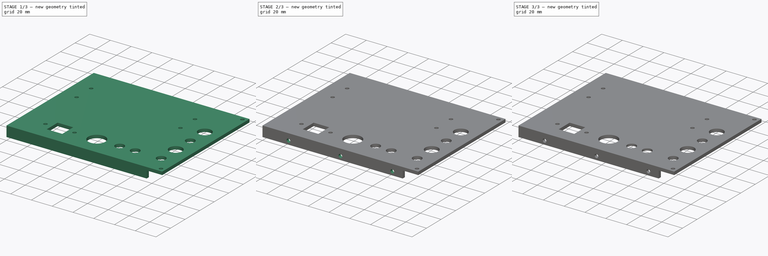
[diagram: build sequence overview — one tinted view per stage of 3, left to right]
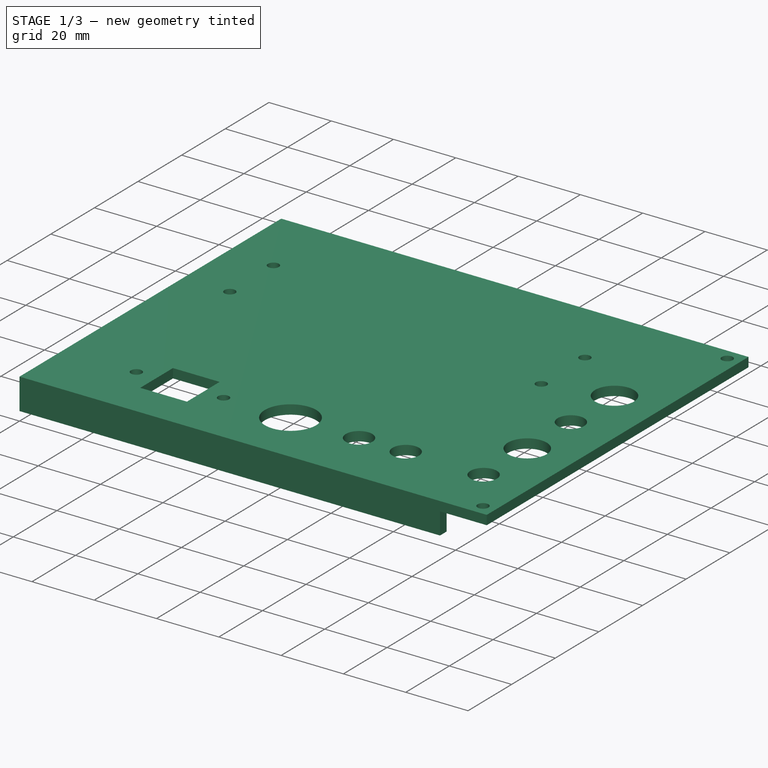
[diagram: stage 1 of 3 — iso view after this stage's code; geometry added in this stage tinted green]
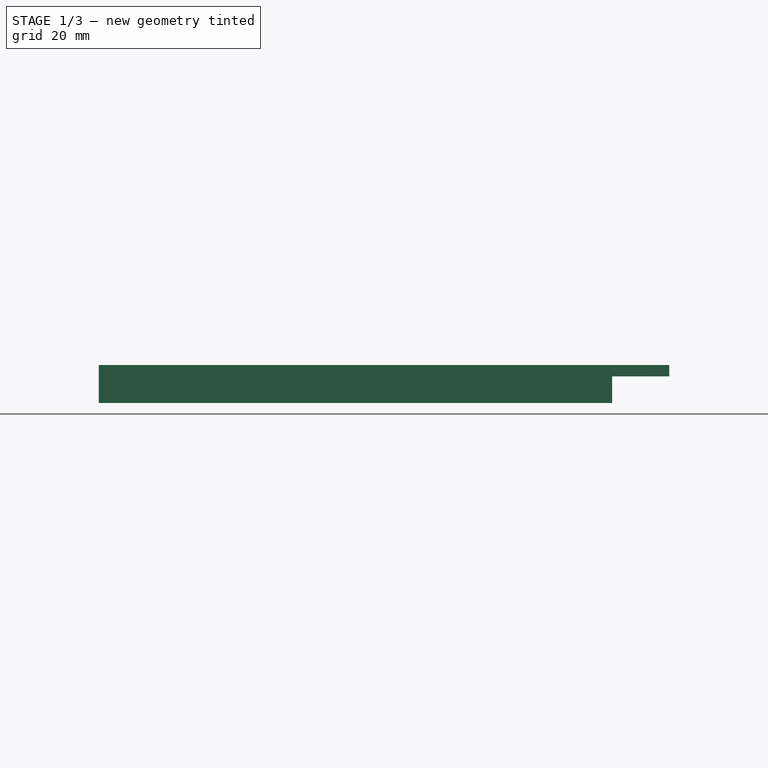
[diagram: stage 1 of 3 — front view after this stage's code; geometry added in this stage tinted green]
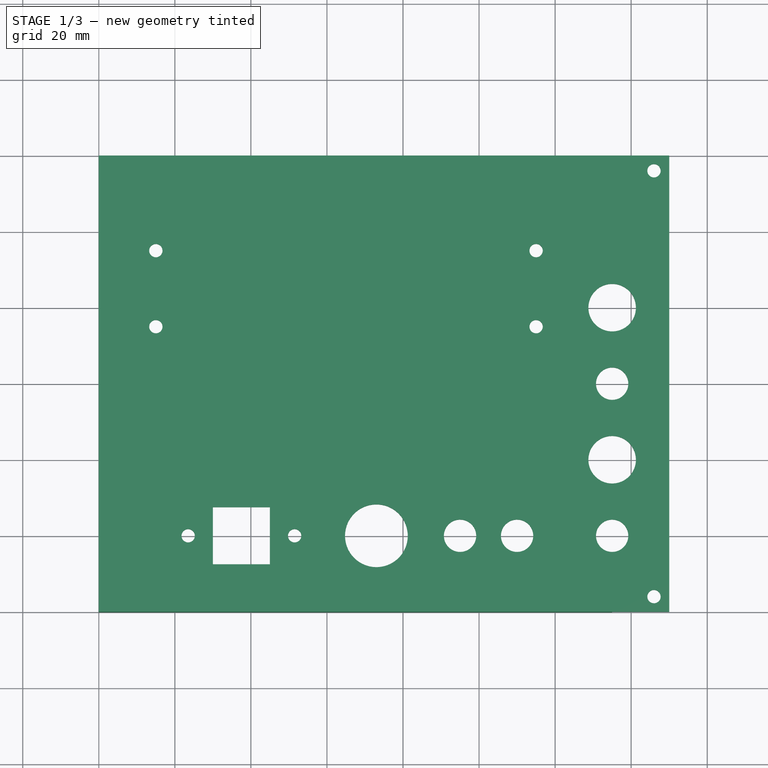
[diagram: stage 1 of 3 — top view after this stage's code; geometry added in this stage tinted green]
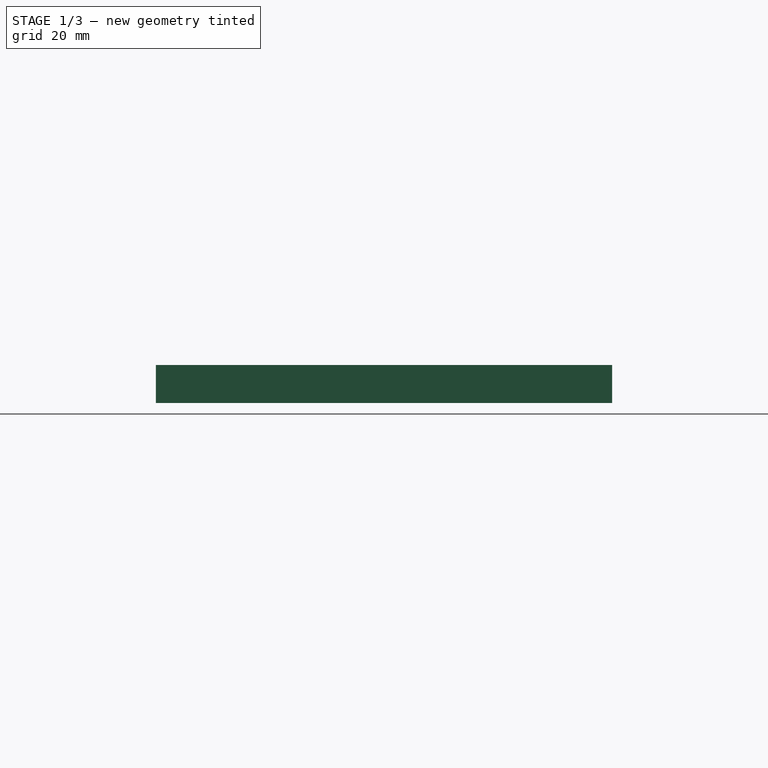
[diagram: stage 1 of 3 — right view after this stage's code; geometry added in this stage tinted green]
FCSTD DOCUMENT  (FreeCAD 0.21R30716 (Git))
Label: T41 Back Left Panel  V010
License: All rights reserved
LicenseURL: http://en.wikipedia.org/wiki/All_rights_reserved
objects: Sketcher::SketchObject×5, PartDesign::Pocket×3, PartDesign::Pad×2, PartDesign::Plane×1, PartDesign::Body×1
note: 17 computed .brp shape members not serialized (recipe doc carries the construction recipe); baked Part::Feature solids carry a one-line shape summary decoded from their .brp

FEATURE [Sketcher::SketchObject] CopySketch010
  FullyConstrained = true
  MapMode = 5
  Placement = pos=(0,0,0) rot=(0,1,0;3.14159rad)
  Support = -> [XY_Plane]
  sketch-geometry (23):
    g0: LineSegment StartX=-150 StartY=60 StartZ=0 EndX=0 EndY=60 EndZ=0
    g1: LineSegment StartX=0 StartY=60 StartZ=0 EndX=0 EndY=-60 EndZ=0
    g2: LineSegment StartX=0 StartY=-60 StartZ=0 EndX=-150 EndY=-60 EndZ=0
    g3: LineSegment StartX=-150 StartY=-60 StartZ=0 EndX=-150 EndY=60 EndZ=0
    g4: Circle CenterX=-146 CenterY=56 CenterZ=0 NormalX=0 NormalY=0 NormalZ=1 AngleXU=0 Radius=1.75
    g5: Circle CenterX=-146 CenterY=-56 CenterZ=0 NormalX=0 NormalY=0 NormalZ=1 AngleXU=0 Radius=1.75
    g6: Circle CenterX=-110 CenterY=-40 CenterZ=0 NormalX=0 NormalY=0 NormalZ=1 AngleXU=0 Radius=4.25
    g7: Circle CenterX=-95 CenterY=-40 CenterZ=0 NormalX=0 NormalY=0 NormalZ=1 AngleXU=0 Radius=4.25
    g8: Circle CenterX=-51.5 CenterY=-40 CenterZ=0 NormalX=0 NormalY=0 NormalZ=1 AngleXU=0 Radius=1.75
    g9: Circle CenterX=-23.5 CenterY=-40 CenterZ=0 NormalX=0 NormalY=0 NormalZ=1 AngleXU=0 Radius=1.75
    g10: LineSegment StartX=-45 StartY=-32.5 StartZ=0 EndX=-30 EndY=-32.5 EndZ=0
    g11: LineSegment StartX=-30 StartY=-32.5 StartZ=0 EndX=-30 EndY=-47.5 EndZ=0
    g12: LineSegment StartX=-30 StartY=-47.5 StartZ=0 EndX=-45 EndY=-47.5 EndZ=0
    g13: LineSegment StartX=-45 StartY=-47.5 StartZ=0 EndX=-45 EndY=-32.5 EndZ=0
    g14: Circle CenterX=-135 CenterY=-40 CenterZ=0 NormalX=0 NormalY=0 NormalZ=1 AngleXU=0 Radius=4.25
    g15: Circle CenterX=-135 CenterY=-20 CenterZ=0 NormalX=0 NormalY=0 NormalZ=1 AngleXU=0 Radius=6.25
    g16: Circle CenterX=-73 CenterY=-40 CenterZ=0 NormalX=0 NormalY=0 NormalZ=1 AngleXU=0 Radius=8.25
    g17: Circle CenterX=-135 CenterY=0 CenterZ=0 NormalX=0 NormalY=0 NormalZ=1 AngleXU=0 Radius=4.25
    g18: Circle CenterX=-135 CenterY=20 CenterZ=0 NormalX=0 NormalY=0 NormalZ=1 AngleXU=0 Radius=6.25
    g19: Circle CenterX=-115 CenterY=35 CenterZ=0 NormalX=0 NormalY=0 NormalZ=1 AngleXU=0 Radius=1.75
    g20: Circle CenterX=-115 CenterY=15 CenterZ=0 NormalX=0 NormalY=0 NormalZ=1 AngleXU=0 Radius=1.75
    g21: Circle CenterX=-15 CenterY=35 CenterZ=0 NormalX=0 NormalY=0 NormalZ=1 AngleXU=0 Radius=1.75
    g22: Circle CenterX=-15 CenterY=15 CenterZ=0 NormalX=0 NormalY=0 NormalZ=1 AngleXU=0 Radius=1.75
  constraints (69):
    c: Coincident(g0,g1)
    c: Coincident(g1,g2)
    c: Coincident(g2,g3)
    c: Coincident(g3,g0)
    c: Horizontal(g0)
    c: Horizontal(g2)
    c: Vertical(g1)
    c: Vertical(g3)
    c: PointOnObject(g1,g-2)
    c: DistanceY(g1,g1) = 120
    c: DistanceX(g2,g2) = 150
    c: Equal(g4,g5)
    c: Diameter(g4) = 3.5
    c: DistanceY(g5,g-1) = 56
    c: DistanceX(g5,g-1) = 146
    c: DistanceX(g4,g-1) = 146
    c: DistanceY(g-1,g4) = 56
    c: DistanceY(g-1,g0) = 60
    c: Horizontal(g6,g7)
    c: DistanceX(g6,g7) = 15
    c: Equal(g8,g9)
    c: Diameter(g8) = 3.5
    c: DistanceX(g8,g9) = 28
    c: Horizontal(g8,g9)
    c: Coincident(g10,g11)
    c: Coincident(g11,g12)
    c: Coincident(g12,g13)
    c: Coincident(g13,g10)
    c: Horizontal(g10)
    c: Horizontal(g12)
    c: Vertical(g11)
    c: Vertical(g13)
    c: DistanceX(g10,g10) = 15
    c: DistanceY(g11,g11) = 15
    c: DistanceX(g10,g9) = 6.5
    c: DistanceY(g9,g10) = 7.5
    c: DistanceY(g9,g-1) = 40
    c: Diameter(g14) = 8.5
    c: DistanceX(g14,g-1) = 135
    c: DistanceY(g14,g-1) = 40
    c: Vertical(g15,g14)
    c: DistanceY(g14,g15) = 20
    c: Diameter(g15) = 12.5
    c: DistanceX(g11,g1) = 30
    c: Equal(g6,g7)
    c: DistanceY(g2,g6) = 20
    c: DistanceX(g2,g6) = 40
    c: Diameter(g16) = 16.5
    c: DistanceY(g2,g16) = 20
    c: DistanceX(g2,g16) = 77
    c: Diameter(g6) = 8.5
    c: Diameter(g17) = 8.5
    c: Diameter(g18) = 12.5
    c: Vertical(g15,g17)
    c: Vertical(g17,g18)
    c: DistanceY(g15,g17) = 20
    c: DistanceY(g17,g18) = 20
    c: Equal(g19,g20)
    c: Equal(g19,g21)
    c: Equal(g19,g22)
    c: Diameter(g19) = 3.5
    c: Vertical(g19,g20)
    c: Vertical(g21,g22)
    c: Horizontal(g20,g22)
    c: DistanceX(g20,g22) = 100
    c: DistanceY(g22,g21) = 20
    c: DistanceY(g21,g0) = 25
    c: DistanceX(g21,g0) = 15
    c: Horizontal(g19,g21)
FEATURE [PartDesign::Pad] Pad
  Direction = (0,0,-1)
  Length = 3
  Length2 = 100
  Profile = -> CopySketch010
  ReferenceAxis = -> CopySketch010 [N_Axis]
  Type = 0
FEATURE [PartDesign::Plane] DatumPlane
  AttachmentOffset = pos=(0,0,-3) rot=(0,0,1;0rad)
  Length = 60
  MapMode = 5
  Placement = pos=(0,0,-3) rot=(0,0,1;0rad)
  ResizeMode = 0
  Support = -> [XY_Plane]
  Width = 60
FEATURE [Sketcher::SketchObject] Sketch
  FullyConstrained = true
  MapMode = 5
  Placement = pos=(0,0,-3) rot=(0,0,1;0rad)
  Support = -> [DatumPlane]
  sketch-geometry (8):
    g0: LineSegment StartX=135 StartY=60 StartZ=0 EndX=135 EndY=57 EndZ=0
    g1: LineSegment StartX=135 StartY=57 StartZ=0 EndX=3 EndY=57 EndZ=0
    g2: LineSegment StartX=3 StartY=57 StartZ=0 EndX=3 EndY=-57 EndZ=0
    g3: LineSegment StartX=3 StartY=-57 StartZ=0 EndX=135 EndY=-57 EndZ=0
    g4: LineSegment StartX=135 StartY=-57 StartZ=0 EndX=135 EndY=-60 EndZ=0
    g5: LineSegment StartX=135 StartY=-60 StartZ=0 EndX=0 EndY=-60 EndZ=0
    g6: LineSegment StartX=0 StartY=-60 StartZ=0 EndX=0 EndY=60 EndZ=0
    g7: LineSegment StartX=0 StartY=60 StartZ=0 EndX=135 EndY=60 EndZ=0
  constraints (24):
    c: Coincident(g0,g1)
    c: Horizontal(g1)
    c: Coincident(g1,g2)
    c: Vertical(g2)
    c: Coincident(g2,g3)
    c: Horizontal(g3)
    c: Coincident(g3,g4)
    c: Coincident(g4,g5)
    c: PointOnObject(g5,g-2)
    c: Horizontal(g5)
    c: Coincident(g5,g6)
    c: PointOnObject(g6,g-2)
    c: Coincident(g6,g7)
    c: Coincident(g7,g0)
    c: Horizontal(g7)
    c: Parallel(g0,g-2)
    c: Parallel(g4,g-2)
    c: DistanceY(g0,g0) = 3
    c: DistanceX(g7,g7) = 135
    c: DistanceX(g5,g5) = 135
    c: DistanceY(g6,g6) = 120
    c: DistanceY(g-1,g6) = 60
    c: DistanceX(g-1,g1) = 3
    c: DistanceY(g4,g3) = 3
FEATURE [PartDesign::Pad] Pad001  label="Flange"
  BaseFeature = -> Pad
  Direction = (0,0,1)
  Length = 7
  Length2 = 100
  Profile = -> Sketch
  ReferenceAxis = -> Sketch [N_Axis]
  Reversed = true
  Type = 0
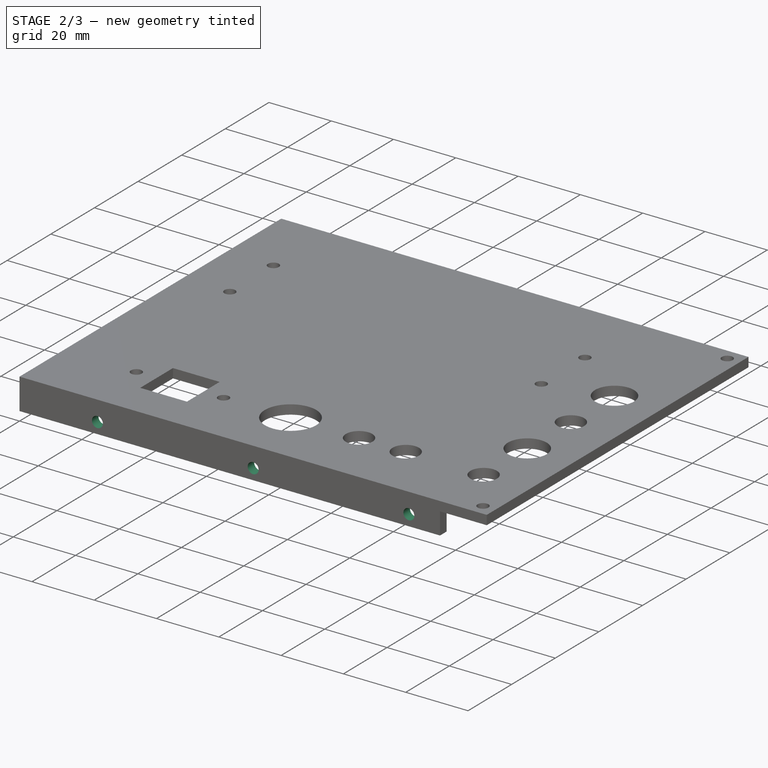
[diagram: stage 2 of 3 — iso view after this stage's code; geometry added in this stage tinted green]
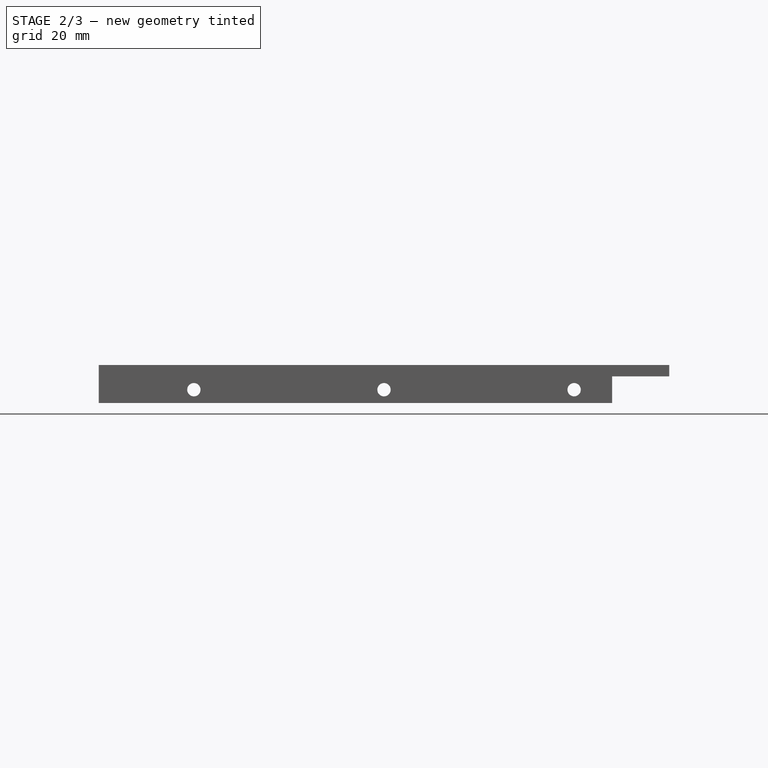
[diagram: stage 2 of 3 — front view after this stage's code; geometry added in this stage tinted green]
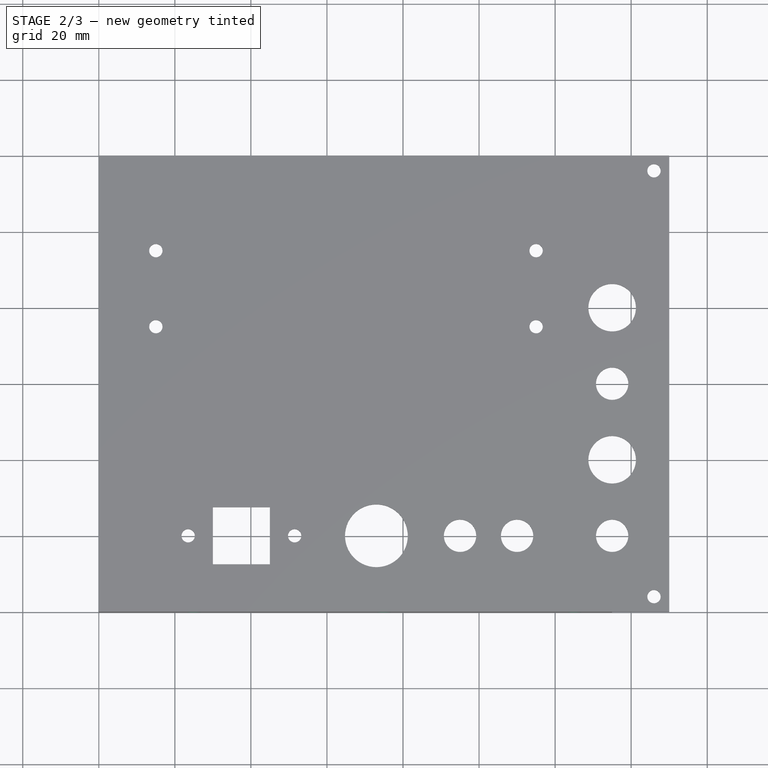
[diagram: stage 2 of 3 — top view after this stage's code; geometry added in this stage tinted green]
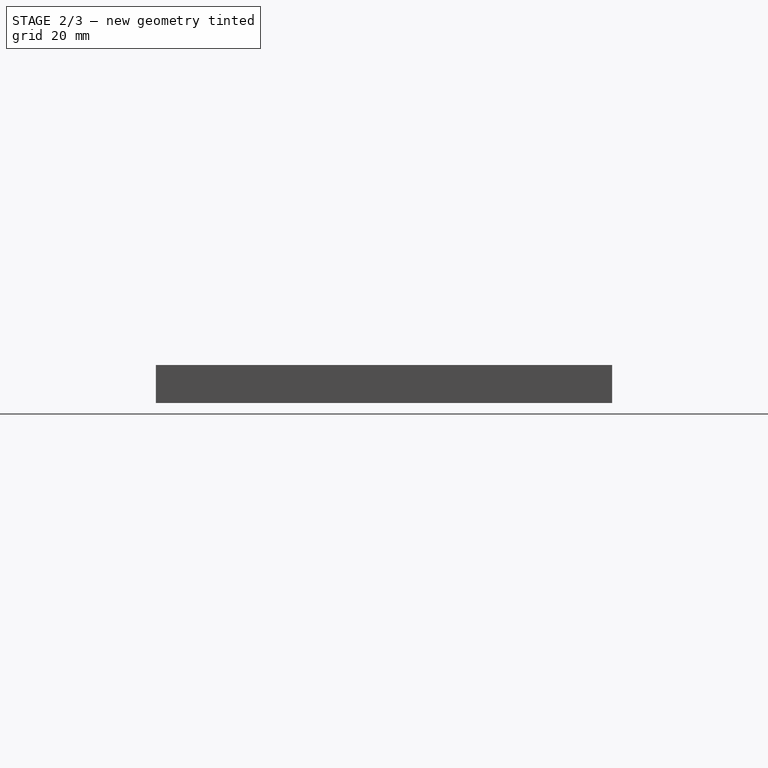
[diagram: stage 2 of 3 — right view after this stage's code; geometry added in this stage tinted green]
FEATURE [Sketcher::SketchObject] Sketch001
  FullyConstrained = true
  MapMode = 5
  Placement = pos=(0,60,0) rot=(0,0.707107,0.707107;3.14159rad)
  Support = -> [Pad001]
  sketch-geometry (3):
    g0: Circle CenterX=-25 CenterY=-6.5 CenterZ=0 NormalX=0 NormalY=0 NormalZ=1 AngleXU=0 Radius=1.75
    g1: Circle CenterX=-125 CenterY=-6.5 CenterZ=0 NormalX=0 NormalY=0 NormalZ=1 AngleXU=0 Radius=1.75
    g2: Circle CenterX=-75 CenterY=-6.5 CenterZ=0 NormalX=0 NormalY=0 NormalZ=1 AngleXU=0 Radius=1.75
  constraints (9):
    c: Equal(g1,g0)
    c: Horizontal(g1,g0)
    c: DistanceY(g0,g-1) = 6.5
    c: DistanceX(g0,g-1) = 25
    c: DistanceX(g1,g-1) = 125
    c: DistanceX(g2,g-1) = 75
    c: DistanceY(g2,g-1) = 6.5
    c: Equal(g0,g2)
    c: Diameter(g1) = 3.5
FEATURE [PartDesign::Pocket] Pocket  label="Top bottom holes"
  BaseFeature = -> Pad001
  Direction = (0,-1,2e-16)
  Length = 225.01
  Length2 = 100
  Profile = -> Sketch001
  Type = 0
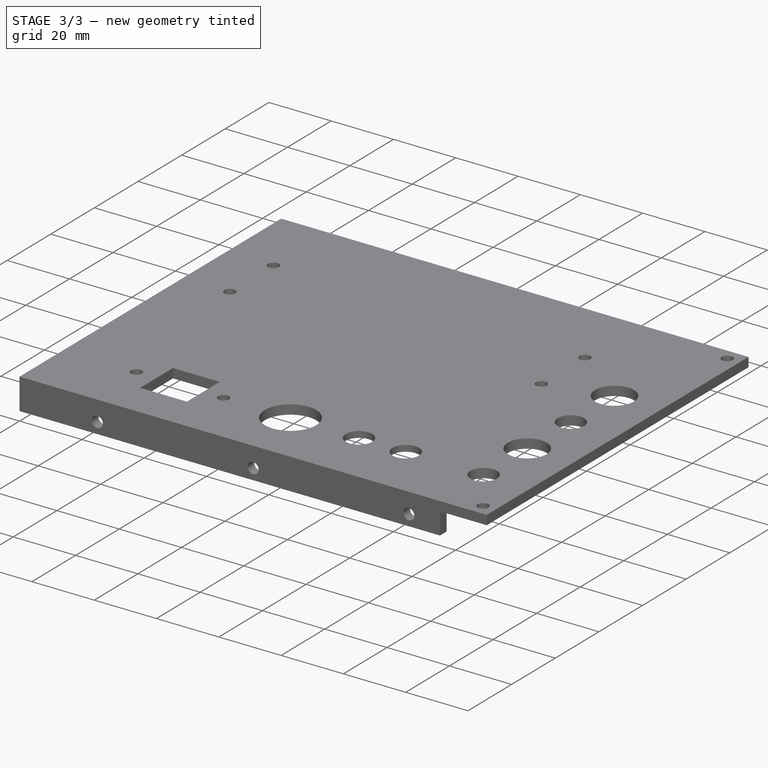
[diagram: stage 3 of 3 — iso view after this stage's code; geometry added in this stage tinted green]
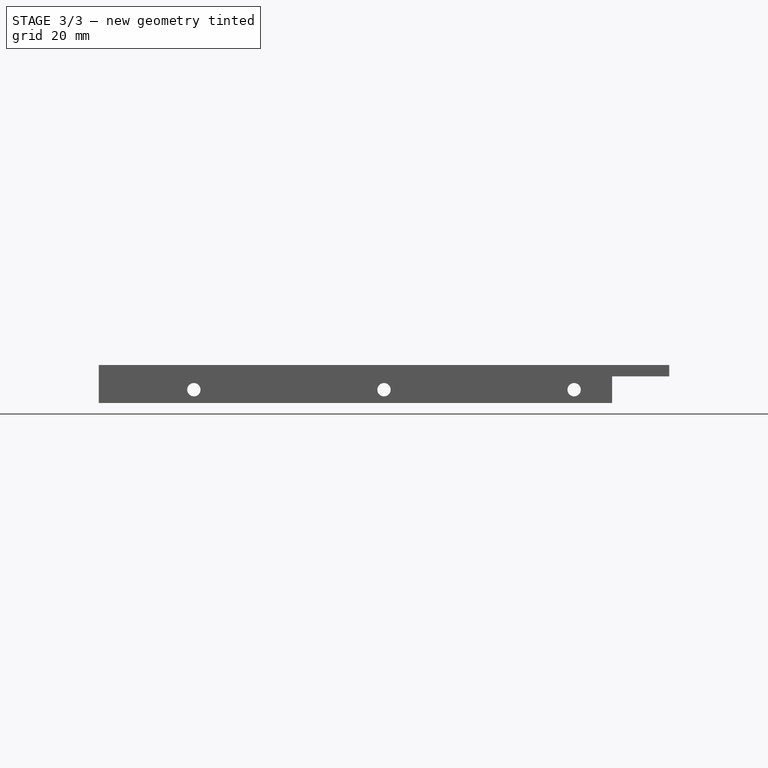
[diagram: stage 3 of 3 — front view after this stage's code; geometry added in this stage tinted green]
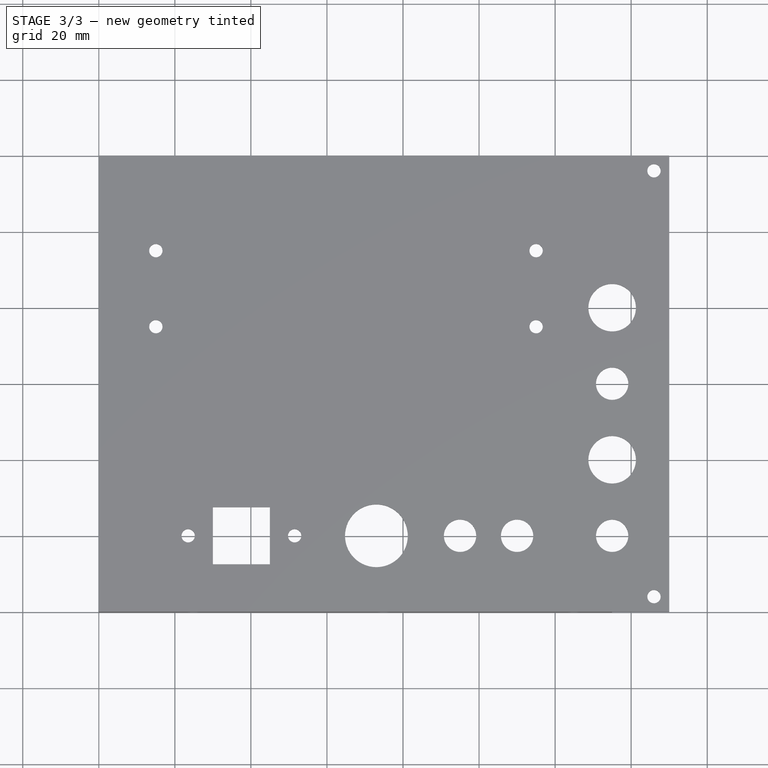
[diagram: stage 3 of 3 — top view after this stage's code; geometry added in this stage tinted green]
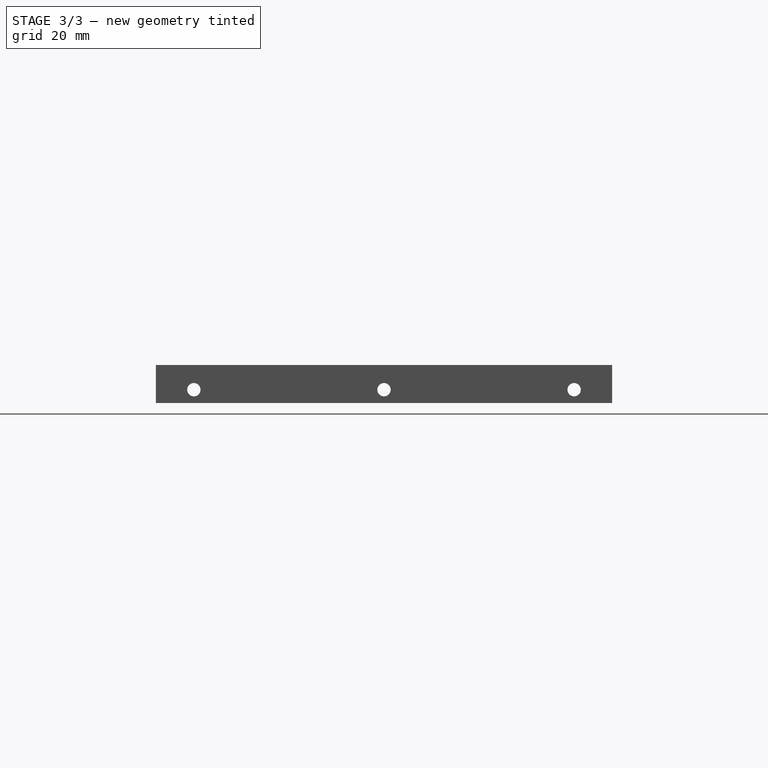
[diagram: stage 3 of 3 — right view after this stage's code; geometry added in this stage tinted green]
FEATURE [Sketcher::SketchObject] Sketch002
  FullyConstrained = true
  MapMode = 5
  Placement = pos=(0,0,0) rot=(0.57735,-0.57735,-0.57735;2.0944rad)
  Support = -> [Pocket]
  sketch-geometry (3):
    g0: Circle CenterX=50 CenterY=-6.5 CenterZ=0 NormalX=0 NormalY=0 NormalZ=1 AngleXU=0 Radius=1.75
    g1: Circle CenterX=-50 CenterY=-6.5 CenterZ=0 NormalX=0 NormalY=0 NormalZ=1 AngleXU=0 Radius=1.75
    g2: Circle CenterX=0 CenterY=-6.5 CenterZ=0 NormalX=0 NormalY=0 NormalZ=1 AngleXU=0 Radius=1.75
  constraints (9):
    c: Equal(g0,g1)
    c: Diameter(g0) = 3.5
    c: Horizontal(g0,g1)
    c: DistanceY(g0,g-1) = 6.5
    c: Diameter(g2) = 3.5
    c: Horizontal(g0,g2)
    c: DistanceX(g2,g-1) = 0
    c: DistanceX(g0) = 50
    c: DistanceX(g1,g-1) = 50
FEATURE [PartDesign::Pocket] Pocket001  label="Center holes"
  BaseFeature = -> Pocket
  Direction = (1,0,0)
  Length = 5.01
  Length2 = 100
  Profile = -> Sketch002
  Type = 0
FEATURE [Sketcher::SketchObject] Sketch003
  FullyConstrained = true
  MapMode = 5
  Placement = pos=(0,0,-3) rot=(1,0,0;3.14159rad)
  Support = -> [Pocket001]
  sketch-geometry (4):
    g0: LineSegment StartX=86 StartY=50 StartZ=0 EndX=119 EndY=50 EndZ=0
    g1: LineSegment StartX=119 StartY=50 StartZ=0 EndX=119 EndY=30 EndZ=0
    g2: LineSegment StartX=119 StartY=30 StartZ=0 EndX=86 EndY=30 EndZ=0
    g3: LineSegment StartX=86 StartY=30 StartZ=0 EndX=86 EndY=50 EndZ=0
  constraints (12):
    c: Coincident(g0,g1)
    c: Coincident(g1,g2)
    c: Coincident(g2,g3)
    c: Coincident(g3,g0)
    c: Horizontal(g0)
    c: Horizontal(g2)
    c: Vertical(g1)
    c: Vertical(g3)
    c: DistanceX(g-1,g0) = 86
    c: DistanceY(g3,g3) = 20
    c: DistanceX(g0,g0) = 33
    c: DistanceY(g-1,g2) = 30
FEATURE [PartDesign::Pocket] Pocket002
  BaseFeature = -> Pocket001
  Direction = (0,0,1)
  Length = 1
  Length2 = 100
  Profile = -> Sketch003
  ReferenceAxis = -> Sketch003 [N_Axis]
  Type = 0
FEATURE [PartDesign::Body] Body  label="Back Panel  L"
  Group = -> [CopySketch010,Pad,Sketch,Pad001,Sketch001,Pocket,Sketch002,Pocket001,Sketch003,Pocket002,DatumPlane]
  Origin = -> Origin
  Tip = -> Pocket002
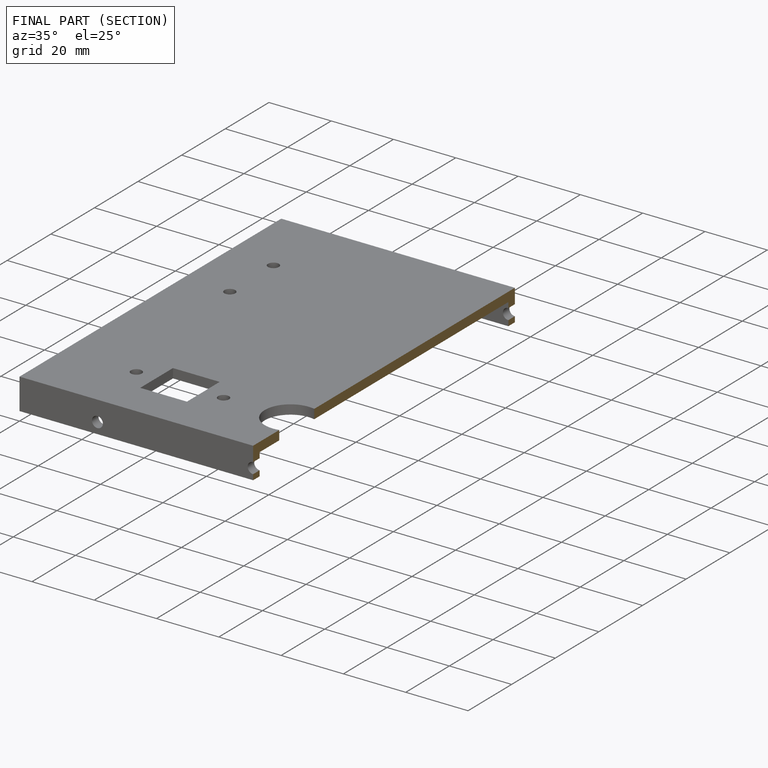
[diagram: finished part — half-section view (interior)]
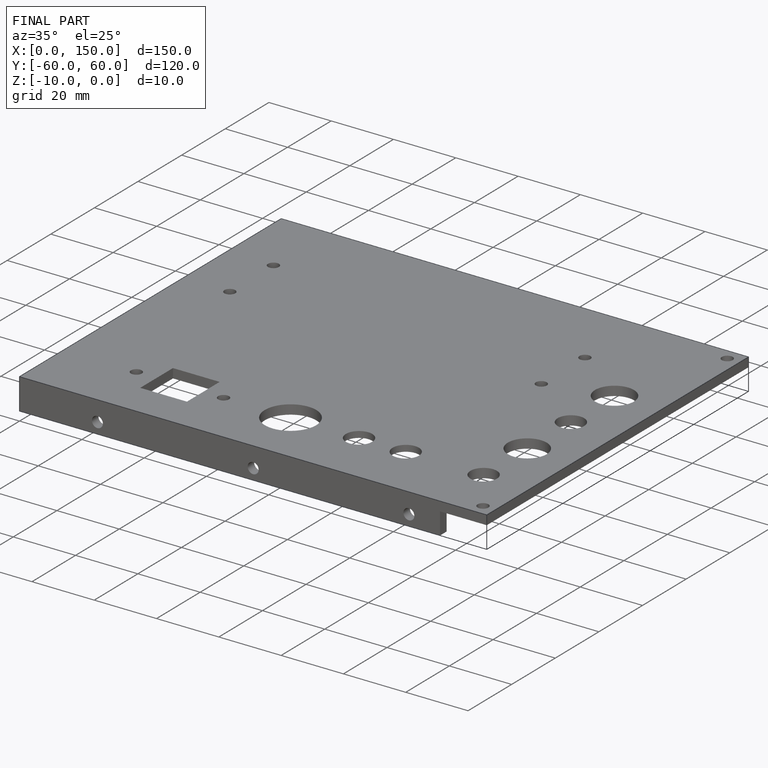
[diagram: finished part — iso view with bounding-box wireframe]
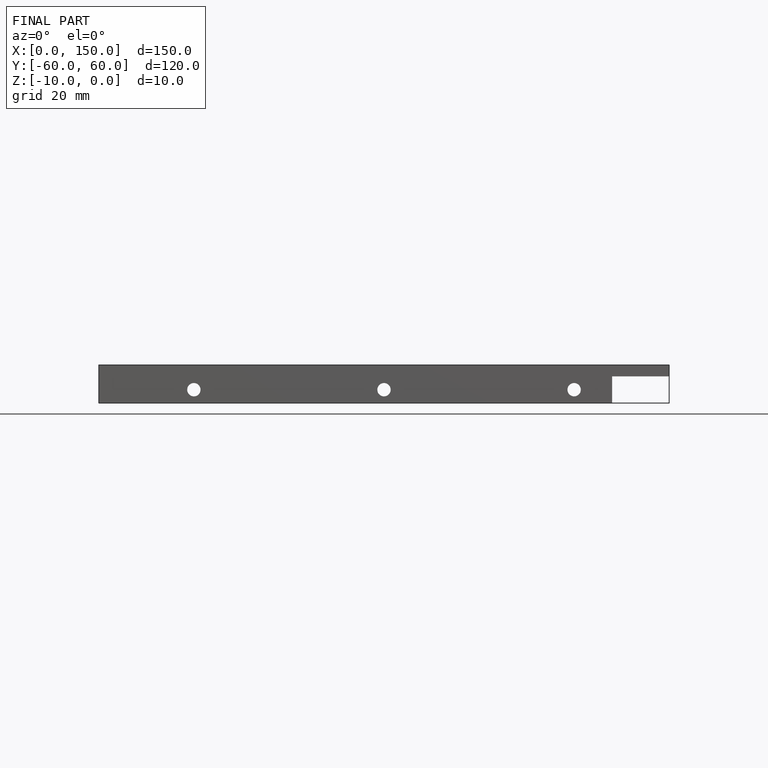
[diagram: finished part — front view with bounding-box wireframe]
